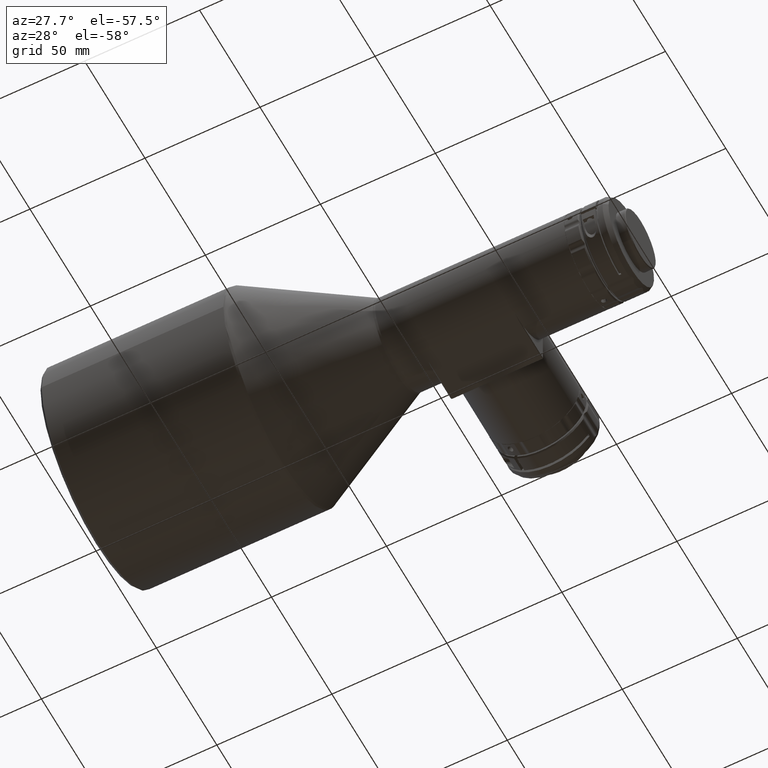
[diagram: clean part render]
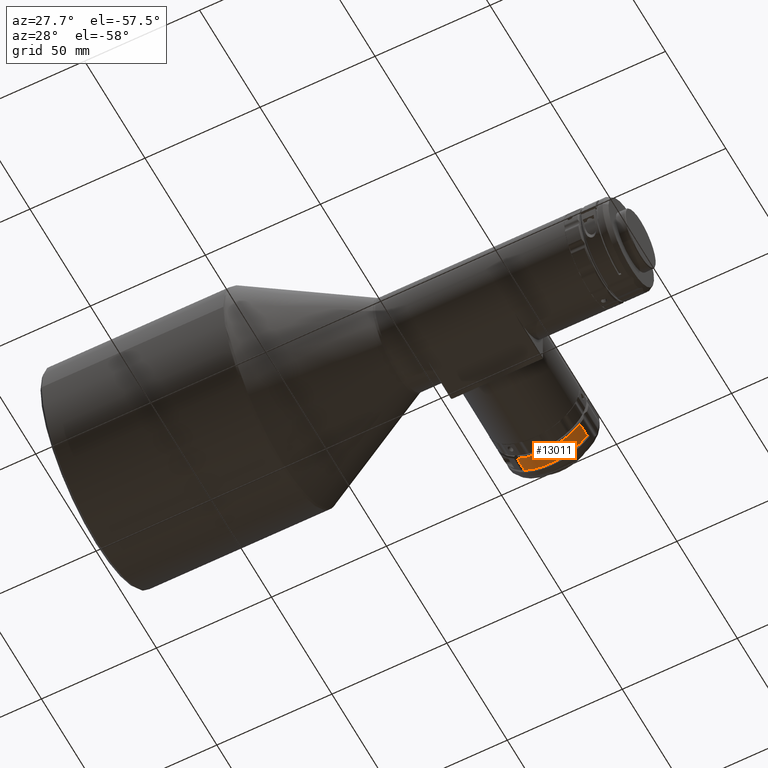
[diagram: same view with one face highlighted and labeled with its STEP entity id]
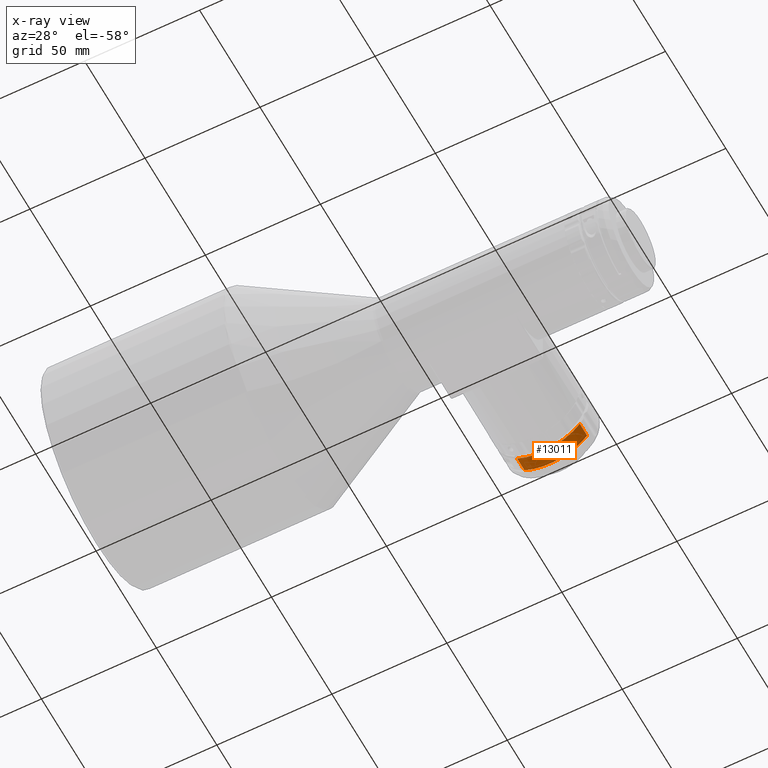
[diagram: x-ray of the same camera — body ghosted, the highlighted face saturated]
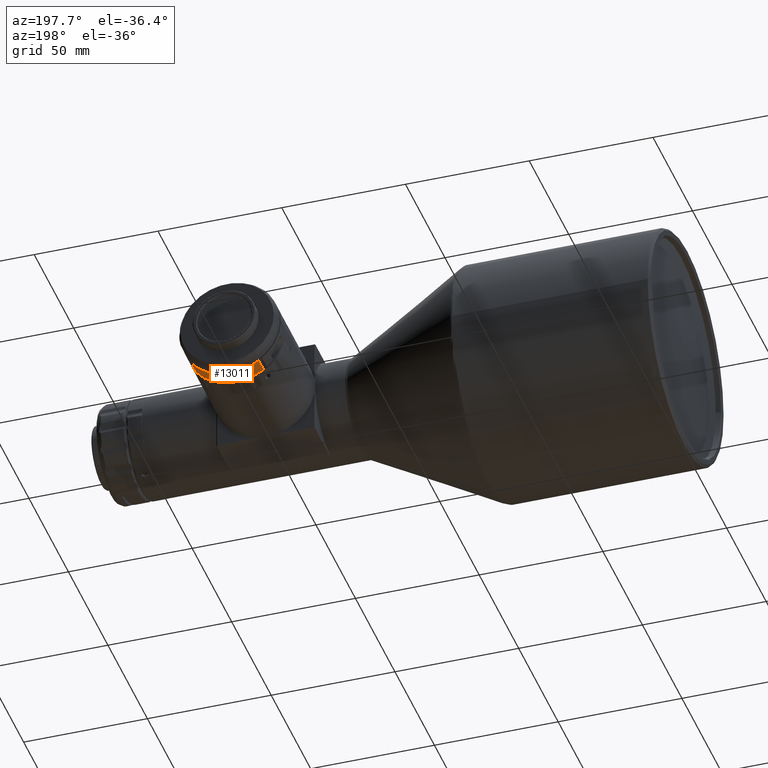
[diagram: same view with one face highlighted and labeled with its STEP entity id]
A machine part, auxiliary view. The second image highlights one B-rep face of the part: STEP entity #13011.
The next image is the same camera in x-ray: the body ghosted, the highlighted face saturated — about 0% of this face is hidden behind the body in this view.
A second angle (auxiliary view) of the same face is appended — the face is thin or edge-on in the first view.
In plain terms, the highlighted cylindrical surface (partial cylindrical patch) has radius 20 mm, axis along (0, -1, -0).
Its self-contained STEP definition (entity closure, byte-faithful):
#127 = CARTESIAN_POINT ( 'NONE',  ( 152.8377480272569400, 60.24999999999999300, -16.65548667127706800 ) ) ;
#445 = AXIS2_PLACEMENT_3D ( 'NONE', #10736, #11852, #5203 ) ;
#968 = ORIENTED_EDGE ( 'NONE', *, *, #8025, .T. ) ;
#1344 = AXIS2_PLACEMENT_3D ( 'NONE', #8109, #2739, #1481 ) ;
#1481 = DIRECTION ( 'NONE',  ( 0.8099633434454094300, 0.0000000000000000000, -0.5864805045990307800 ) ) ;
#1786 = DIRECTION ( 'NONE',  ( 0.8099633434454094300, 0.0000000000000000000, -0.5864805045990307800 ) ) ;
#2739 = DIRECTION ( 'NONE',  ( -3.512656066388543200E-017, 1.000000000000000000, 2.543453748826655400E-017 ) ) ;
#3393 = VECTOR ( 'NONE', #5607, 1000.000000000000000 ) ;
#3492 = CARTESIAN_POINT ( 'NONE',  ( 180.1092668689081800, 63.54999999539999300, -11.72961009198061600 ) ) ;
#3656 = VERTEX_POINT ( 'NONE', #6592 ) ;
#3734 = CARTESIAN_POINT ( 'NONE',  ( 152.8377480272936300, 63.54999999769998500, -16.65548667122639900 ) ) ;
#3852 = EDGE_LOOP ( 'NONE', ( #5234, #968, #5734, #5051 ) ) ;
#4011 = CARTESIAN_POINT ( 'NONE',  ( 163.9100000000000000, 66.74999999999998600, 0.0000000000000000000 ) ) ;
#4252 = LINE ( 'NONE', #127, #12731 ) ;
#4438 = CIRCLE ( 'NONE', #1344, 19.99999999999999600 ) ;
#4716 = CYLINDRICAL_SURFACE ( 'NONE', #14367, 19.99999999999999600 ) ;
#4947 = EDGE_CURVE ( 'NONE', #9177, #3656, #14118, .T. ) ;
#5051 = ORIENTED_EDGE ( 'NONE', *, *, #9294, .T. ) ;
#5203 = DIRECTION ( 'NONE',  ( -0.5864805045990308900, 2.775557561562891000E-015, -0.8099633434454093200 ) ) ;
#5234 = ORIENTED_EDGE ( 'NONE', *, *, #8416, .F. ) ;
#5607 = DIRECTION ( 'NONE',  ( 3.512656066388543200E-017, -1.000000000000000000, -2.543453748826655400E-017 ) ) ;
#5734 = ORIENTED_EDGE ( 'NONE', *, *, #4947, .T. ) ;
#6592 = CARTESIAN_POINT ( 'NONE',  ( 152.8377480272936300, 57.45000000006248100, -16.65548667122639900 ) ) ;
#7689 = VERTEX_POINT ( 'NONE', #3734 ) ;
#7896 = DIRECTION ( 'NONE',  ( 0.0000000000000000000, 1.000000000000000000, 0.0000000000000000000 ) ) ;
#8025 = EDGE_CURVE ( 'NONE', #14199, #9177, #13452, .T. ) ;
#8109 = CARTESIAN_POINT ( 'NONE',  ( 163.9100000000000000, 63.54999999539999300, -8.139052007945194500E-017 ) ) ;
#8416 = EDGE_CURVE ( 'NONE', #14199, #7689, #4438, .T. ) ;
#9177 = VERTEX_POINT ( 'NONE', #10866 ) ;
#9294 = EDGE_CURVE ( 'NONE', #3656, #7689, #4252, .T. ) ;
#10091 = FACE_OUTER_BOUND ( 'NONE', #3852, .T. ) ;
#10736 = CARTESIAN_POINT ( 'NONE',  ( 163.9100000000000000, 57.44999999999993900, 0.0000000000000000000 ) ) ;
#10866 = CARTESIAN_POINT ( 'NONE',  ( 180.1092668689081800, 57.44999999999993900, -11.72961009198061600 ) ) ;
#11852 = DIRECTION ( 'NONE',  ( 0.0000000000000000000, 1.000000000000000000, 0.0000000000000000000 ) ) ;
#12140 = CARTESIAN_POINT ( 'NONE',  ( 180.1092668689081800, 66.74999999999998600, -11.72961009198061300 ) ) ;
#12731 = VECTOR ( 'NONE', #7896, 1000.000000000000000 ) ;
#13011 = ADVANCED_FACE ( 'NONE', ( #10091 ), #4716, .T. ) ;
#13452 = LINE ( 'NONE', #12140, #3393 ) ;
#14041 = DIRECTION ( 'NONE',  ( 3.512656066388543200E-017, -1.000000000000000000, -2.543453748826655400E-017 ) ) ;
#14118 = CIRCLE ( 'NONE', #445, 20.00000000000000400 ) ;
#14199 = VERTEX_POINT ( 'NONE', #3492 ) ;
#14367 = AXIS2_PLACEMENT_3D ( 'NONE', #4011, #14041, #1786 ) ;